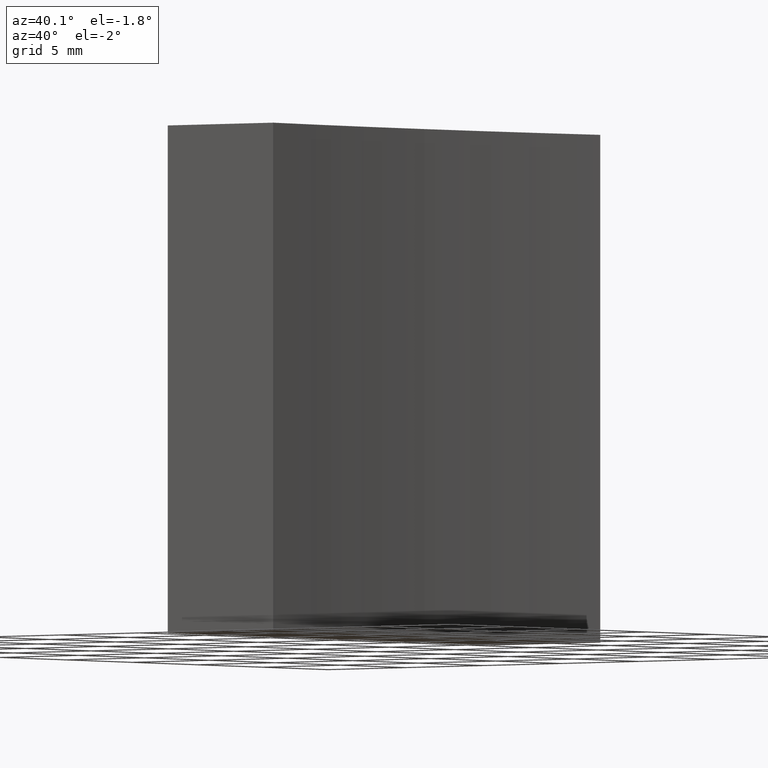
[diagram: clean part render]
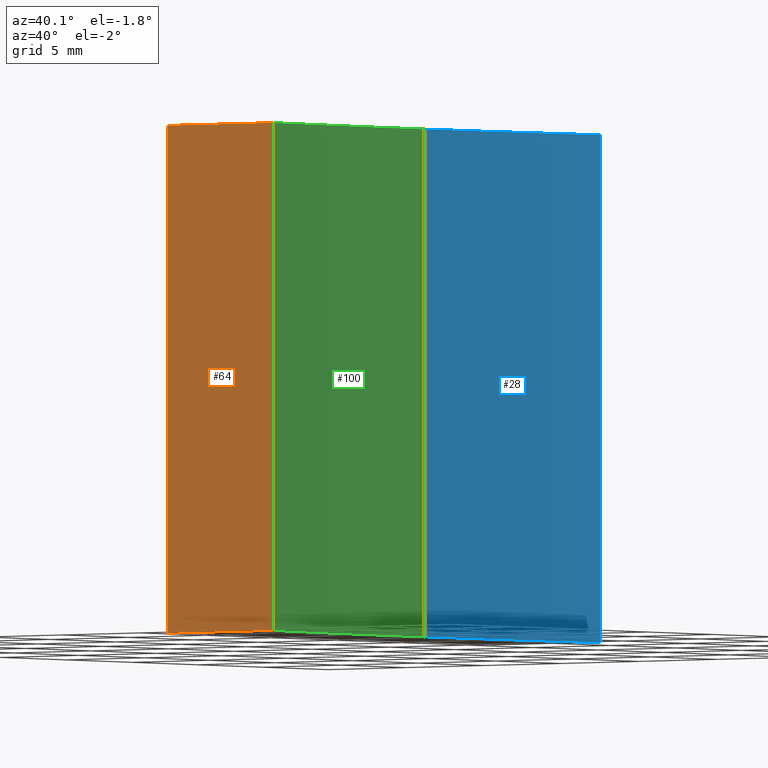
[diagram: same view with three faces highlighted in distinct colors, each labeled with its STEP entity id]
A machine part, auxiliary view with three faces highlighted in distinct colors.
Their STEP definitions:

[orange] entity #64 — the highlighted planar face has unit normal (0, 1, -0).
#4 = CARTESIAN_POINT ( 'NONE',  ( 291.4914614961174900, 54.35792926776707600, 25.00000000000000000 ) ) ;
#6 = EDGE_CURVE ( 'NONE', #218, #210, #206, .T. ) ;
#19 = LINE ( 'NONE', #109, #179 ) ;
#20 = DIRECTION ( 'NONE',  ( 1.000000000000000000, -0.0000000000000000000, -0.0000000000000000000 ) ) ;
#36 = EDGE_CURVE ( 'NONE', #218, #170, #19, .T. ) ;
#50 = VECTOR ( 'NONE', #20, 1000.000000000000000 ) ;
#56 = CARTESIAN_POINT ( 'NONE',  ( 291.4914614961174900, 54.35792926776711900, 0.0000000000000000000 ) ) ;
#57 = ORIENTED_EDGE ( 'NONE', *, *, #6, .T. ) ;
#59 = CARTESIAN_POINT ( 'NONE',  ( 291.4914614961174900, 54.35792926776711900, 25.00000000000000000 ) ) ;
#62 = CARTESIAN_POINT ( 'NONE',  ( 284.7071356312820900, 54.35792926776707600, 0.0000000000000000000 ) ) ;
#64 = ADVANCED_FACE ( 'NONE', ( #227 ), #165, .F. ) ;
#71 = EDGE_LOOP ( 'NONE', ( #181, #159, #212, #57 ) ) ;
#84 = CARTESIAN_POINT ( 'NONE',  ( 284.7071356312820900, 54.35792926776707600, 25.00000000000000000 ) ) ;
#85 = EDGE_CURVE ( 'NONE', #210, #104, #98, .T. ) ;
#87 = CARTESIAN_POINT ( 'NONE',  ( 284.7071356312820900, 54.35792926776707600, 25.00000000000000000 ) ) ;
#98 = LINE ( 'NONE', #224, #50 ) ;
#104 = VERTEX_POINT ( 'NONE', #56 ) ;
#109 = CARTESIAN_POINT ( 'NONE',  ( 291.4914614961174900, 54.35792926776707600, 25.00000000000000000 ) ) ;
#117 = DIRECTION ( 'NONE',  ( 0.0000000000000000000, 0.0000000000000000000, 1.000000000000000000 ) ) ;
#118 = DIRECTION ( 'NONE',  ( 0.0000000000000000000, 1.000000000000000000, -0.0000000000000000000 ) ) ;
#126 = VECTOR ( 'NONE', #236, 1000.000000000000000 ) ;
#128 = DIRECTION ( 'NONE',  ( 1.000000000000000000, -0.0000000000000000000, -0.0000000000000000000 ) ) ;
#134 = DIRECTION ( 'NONE',  ( -0.0000000000000000000, -0.0000000000000000000, -1.000000000000000000 ) ) ;
#157 = EDGE_CURVE ( 'NONE', #170, #104, #214, .T. ) ;
#159 = ORIENTED_EDGE ( 'NONE', *, *, #157, .F. ) ;
#165 = PLANE ( 'NONE',  #231 ) ;
#170 = VERTEX_POINT ( 'NONE', #59 ) ;
#172 = VECTOR ( 'NONE', #134, 1000.000000000000000 ) ;
#179 = VECTOR ( 'NONE', #128, 1000.000000000000000 ) ;
#181 = ORIENTED_EDGE ( 'NONE', *, *, #85, .T. ) ;
#206 = LINE ( 'NONE', #87, #126 ) ;
#210 = VERTEX_POINT ( 'NONE', #62 ) ;
#212 = ORIENTED_EDGE ( 'NONE', *, *, #36, .F. ) ;
#214 = LINE ( 'NONE', #239, #172 ) ;
#218 = VERTEX_POINT ( 'NONE', #84 ) ;
#224 = CARTESIAN_POINT ( 'NONE',  ( 291.4914614961174900, 54.35792926776707600, 0.0000000000000000000 ) ) ;
#227 = FACE_OUTER_BOUND ( 'NONE', #71, .T. ) ;
#231 = AXIS2_PLACEMENT_3D ( 'NONE', #4, #118, #117 ) ;
#236 = DIRECTION ( 'NONE',  ( -0.0000000000000000000, -0.0000000000000000000, -1.000000000000000000 ) ) ;
#239 = CARTESIAN_POINT ( 'NONE',  ( 291.4914614961174900, 54.35792926776711900, 25.00000000000000000 ) ) ;

[blue] entity #28 — the highlighted cylindrical surface (partial cylindrical patch) has radius 100 mm, axis along (-0, -0, -1).
#3 = LINE ( 'NONE', #110, #194 ) ;
#7 = CIRCLE ( 'NONE', #17, 99.99999999999997200 ) ;
#8 = FACE_OUTER_BOUND ( 'NONE', #233, .T. ) ;
#9 = DIRECTION ( 'NONE',  ( -0.0000000000000000000, -0.0000000000000000000, -1.000000000000000000 ) ) ;
#11 = ORIENTED_EDGE ( 'NONE', *, *, #182, .F. ) ;
#16 = AXIS2_PLACEMENT_3D ( 'NONE', #222, #40, #90 ) ;
#17 = AXIS2_PLACEMENT_3D ( 'NONE', #42, #166, #95 ) ;
#28 = ADVANCED_FACE ( 'NONE', ( #8 ), #49, .F. ) ;
#29 = ORIENTED_EDGE ( 'NONE', *, *, #63, .F. ) ;
#37 = DIRECTION ( 'NONE',  ( -0.0000000000000000000, -0.0000000000000000000, -1.000000000000000000 ) ) ;
#40 = DIRECTION ( 'NONE',  ( -0.0000000000000000000, -0.0000000000000000000, -1.000000000000000000 ) ) ;
#42 = CARTESIAN_POINT ( 'NONE',  ( 390.7071356610396700, 66.85792926776684900, 25.00000000000000000 ) ) ;
#46 = DIRECTION ( 'NONE',  ( -0.0000000000000000000, -0.0000000000000000000, -1.000000000000000000 ) ) ;
#49 = CYLINDRICAL_SURFACE ( 'NONE', #16, 99.99999999999997200 ) ;
#55 = ORIENTED_EDGE ( 'NONE', *, *, #188, .T. ) ;
#61 = CARTESIAN_POINT ( 'NONE',  ( 290.7071356610396700, 66.85792926776684900, 0.0000000000000000000 ) ) ;
#63 = EDGE_CURVE ( 'NONE', #72, #92, #3, .T. ) ;
#72 = VERTEX_POINT ( 'NONE', #132 ) ;
#78 = CARTESIAN_POINT ( 'NONE',  ( 291.4914614961175500, 79.35792926776707600, 0.0000000000000000000 ) ) ;
#80 = CARTESIAN_POINT ( 'NONE',  ( 390.7071356610396700, 66.85792926776684900, 0.0000000000000000000 ) ) ;
#82 = VERTEX_POINT ( 'NONE', #150 ) ;
#90 = DIRECTION ( 'NONE',  ( -1.000000000000000000, 0.0000000000000000000, 0.0000000000000000000 ) ) ;
#92 = VERTEX_POINT ( 'NONE', #78 ) ;
#95 = DIRECTION ( 'NONE',  ( 1.000000000000000000, 0.0000000000000000000, 0.0000000000000000000 ) ) ;
#96 = CARTESIAN_POINT ( 'NONE',  ( 290.7071356610396700, 66.85792926776684900, 25.00000000000000000 ) ) ;
#110 = CARTESIAN_POINT ( 'NONE',  ( 291.4914614961175500, 79.35792926776707600, 25.00000000000000000 ) ) ;
#132 = CARTESIAN_POINT ( 'NONE',  ( 291.4914614961175500, 79.35792926776707600, 25.00000000000000000 ) ) ;
#143 = LINE ( 'NONE', #96, #232 ) ;
#145 = ORIENTED_EDGE ( 'NONE', *, *, #196, .T. ) ;
#150 = CARTESIAN_POINT ( 'NONE',  ( 290.7071356610396700, 66.85792926776684900, 25.00000000000000000 ) ) ;
#163 = AXIS2_PLACEMENT_3D ( 'NONE', #80, #46, #174 ) ;
#166 = DIRECTION ( 'NONE',  ( -0.0000000000000000000, -0.0000000000000000000, -1.000000000000000000 ) ) ;
#174 = DIRECTION ( 'NONE',  ( 1.000000000000000000, 0.0000000000000000000, 0.0000000000000000000 ) ) ;
#182 = EDGE_CURVE ( 'NONE', #82, #72, #7, .T. ) ;
#188 = EDGE_CURVE ( 'NONE', #198, #92, #217, .T. ) ;
#194 = VECTOR ( 'NONE', #37, 1000.000000000000000 ) ;
#196 = EDGE_CURVE ( 'NONE', #82, #198, #143, .T. ) ;
#198 = VERTEX_POINT ( 'NONE', #61 ) ;
#217 = CIRCLE ( 'NONE', #163, 99.99999999999997200 ) ;
#222 = CARTESIAN_POINT ( 'NONE',  ( 390.7071356610396700, 66.85792926776684900, 25.00000000000000000 ) ) ;
#232 = VECTOR ( 'NONE', #9, 1000.000000000000000 ) ;
#233 = EDGE_LOOP ( 'NONE', ( #11, #145, #55, #29 ) ) ;

[green] entity #100 — the highlighted cylindrical surface (partial cylindrical patch) has radius 100 mm, axis along (-0, -0, -1).
#1 = AXIS2_PLACEMENT_3D ( 'NONE', #191, #187, #10 ) ;
#9 = DIRECTION ( 'NONE',  ( -0.0000000000000000000, -0.0000000000000000000, -1.000000000000000000 ) ) ;
#10 = DIRECTION ( 'NONE',  ( 1.000000000000000000, 0.0000000000000000000, 0.0000000000000000000 ) ) ;
#13 = AXIS2_PLACEMENT_3D ( 'NONE', #60, #93, #21 ) ;
#21 = DIRECTION ( 'NONE',  ( -1.000000000000000000, 0.0000000000000000000, 0.0000000000000000000 ) ) ;
#30 = DIRECTION ( 'NONE',  ( -0.0000000000000000000, -0.0000000000000000000, -1.000000000000000000 ) ) ;
#39 = ORIENTED_EDGE ( 'NONE', *, *, #196, .F. ) ;
#44 = CYLINDRICAL_SURFACE ( 'NONE', #13, 99.99999999999997200 ) ;
#45 = ORIENTED_EDGE ( 'NONE', *, *, #208, .T. ) ;
#56 = CARTESIAN_POINT ( 'NONE',  ( 291.4914614961174900, 54.35792926776711900, 0.0000000000000000000 ) ) ;
#59 = CARTESIAN_POINT ( 'NONE',  ( 291.4914614961174900, 54.35792926776711900, 25.00000000000000000 ) ) ;
#60 = CARTESIAN_POINT ( 'NONE',  ( 390.7071356610396700, 66.85792926776684900, 25.00000000000000000 ) ) ;
#61 = CARTESIAN_POINT ( 'NONE',  ( 290.7071356610396700, 66.85792926776684900, 0.0000000000000000000 ) ) ;
#65 = DIRECTION ( 'NONE',  ( 1.000000000000000000, 0.0000000000000000000, 0.0000000000000000000 ) ) ;
#77 = EDGE_LOOP ( 'NONE', ( #39, #114, #102, #45 ) ) ;
#82 = VERTEX_POINT ( 'NONE', #150 ) ;
#91 = CIRCLE ( 'NONE', #106, 99.99999999999997200 ) ;
#93 = DIRECTION ( 'NONE',  ( -0.0000000000000000000, -0.0000000000000000000, -1.000000000000000000 ) ) ;
#96 = CARTESIAN_POINT ( 'NONE',  ( 290.7071356610396700, 66.85792926776684900, 25.00000000000000000 ) ) ;
#100 = ADVANCED_FACE ( 'NONE', ( #116 ), #44, .F. ) ;
#102 = ORIENTED_EDGE ( 'NONE', *, *, #157, .T. ) ;
#104 = VERTEX_POINT ( 'NONE', #56 ) ;
#106 = AXIS2_PLACEMENT_3D ( 'NONE', #169, #30, #65 ) ;
#114 = ORIENTED_EDGE ( 'NONE', *, *, #215, .F. ) ;
#116 = FACE_OUTER_BOUND ( 'NONE', #77, .T. ) ;
#134 = DIRECTION ( 'NONE',  ( -0.0000000000000000000, -0.0000000000000000000, -1.000000000000000000 ) ) ;
#143 = LINE ( 'NONE', #96, #232 ) ;
#150 = CARTESIAN_POINT ( 'NONE',  ( 290.7071356610396700, 66.85792926776684900, 25.00000000000000000 ) ) ;
#157 = EDGE_CURVE ( 'NONE', #170, #104, #214, .T. ) ;
#169 = CARTESIAN_POINT ( 'NONE',  ( 390.7071356610396700, 66.85792926776684900, 25.00000000000000000 ) ) ;
#170 = VERTEX_POINT ( 'NONE', #59 ) ;
#172 = VECTOR ( 'NONE', #134, 1000.000000000000000 ) ;
#178 = CIRCLE ( 'NONE', #1, 99.99999999999997200 ) ;
#187 = DIRECTION ( 'NONE',  ( -0.0000000000000000000, -0.0000000000000000000, -1.000000000000000000 ) ) ;
#191 = CARTESIAN_POINT ( 'NONE',  ( 390.7071356610396700, 66.85792926776684900, 0.0000000000000000000 ) ) ;
#196 = EDGE_CURVE ( 'NONE', #82, #198, #143, .T. ) ;
#198 = VERTEX_POINT ( 'NONE', #61 ) ;
#208 = EDGE_CURVE ( 'NONE', #104, #198, #178, .T. ) ;
#214 = LINE ( 'NONE', #239, #172 ) ;
#215 = EDGE_CURVE ( 'NONE', #170, #82, #91, .T. ) ;
#232 = VECTOR ( 'NONE', #9, 1000.000000000000000 ) ;
#239 = CARTESIAN_POINT ( 'NONE',  ( 291.4914614961174900, 54.35792926776711900, 25.00000000000000000 ) ) ;